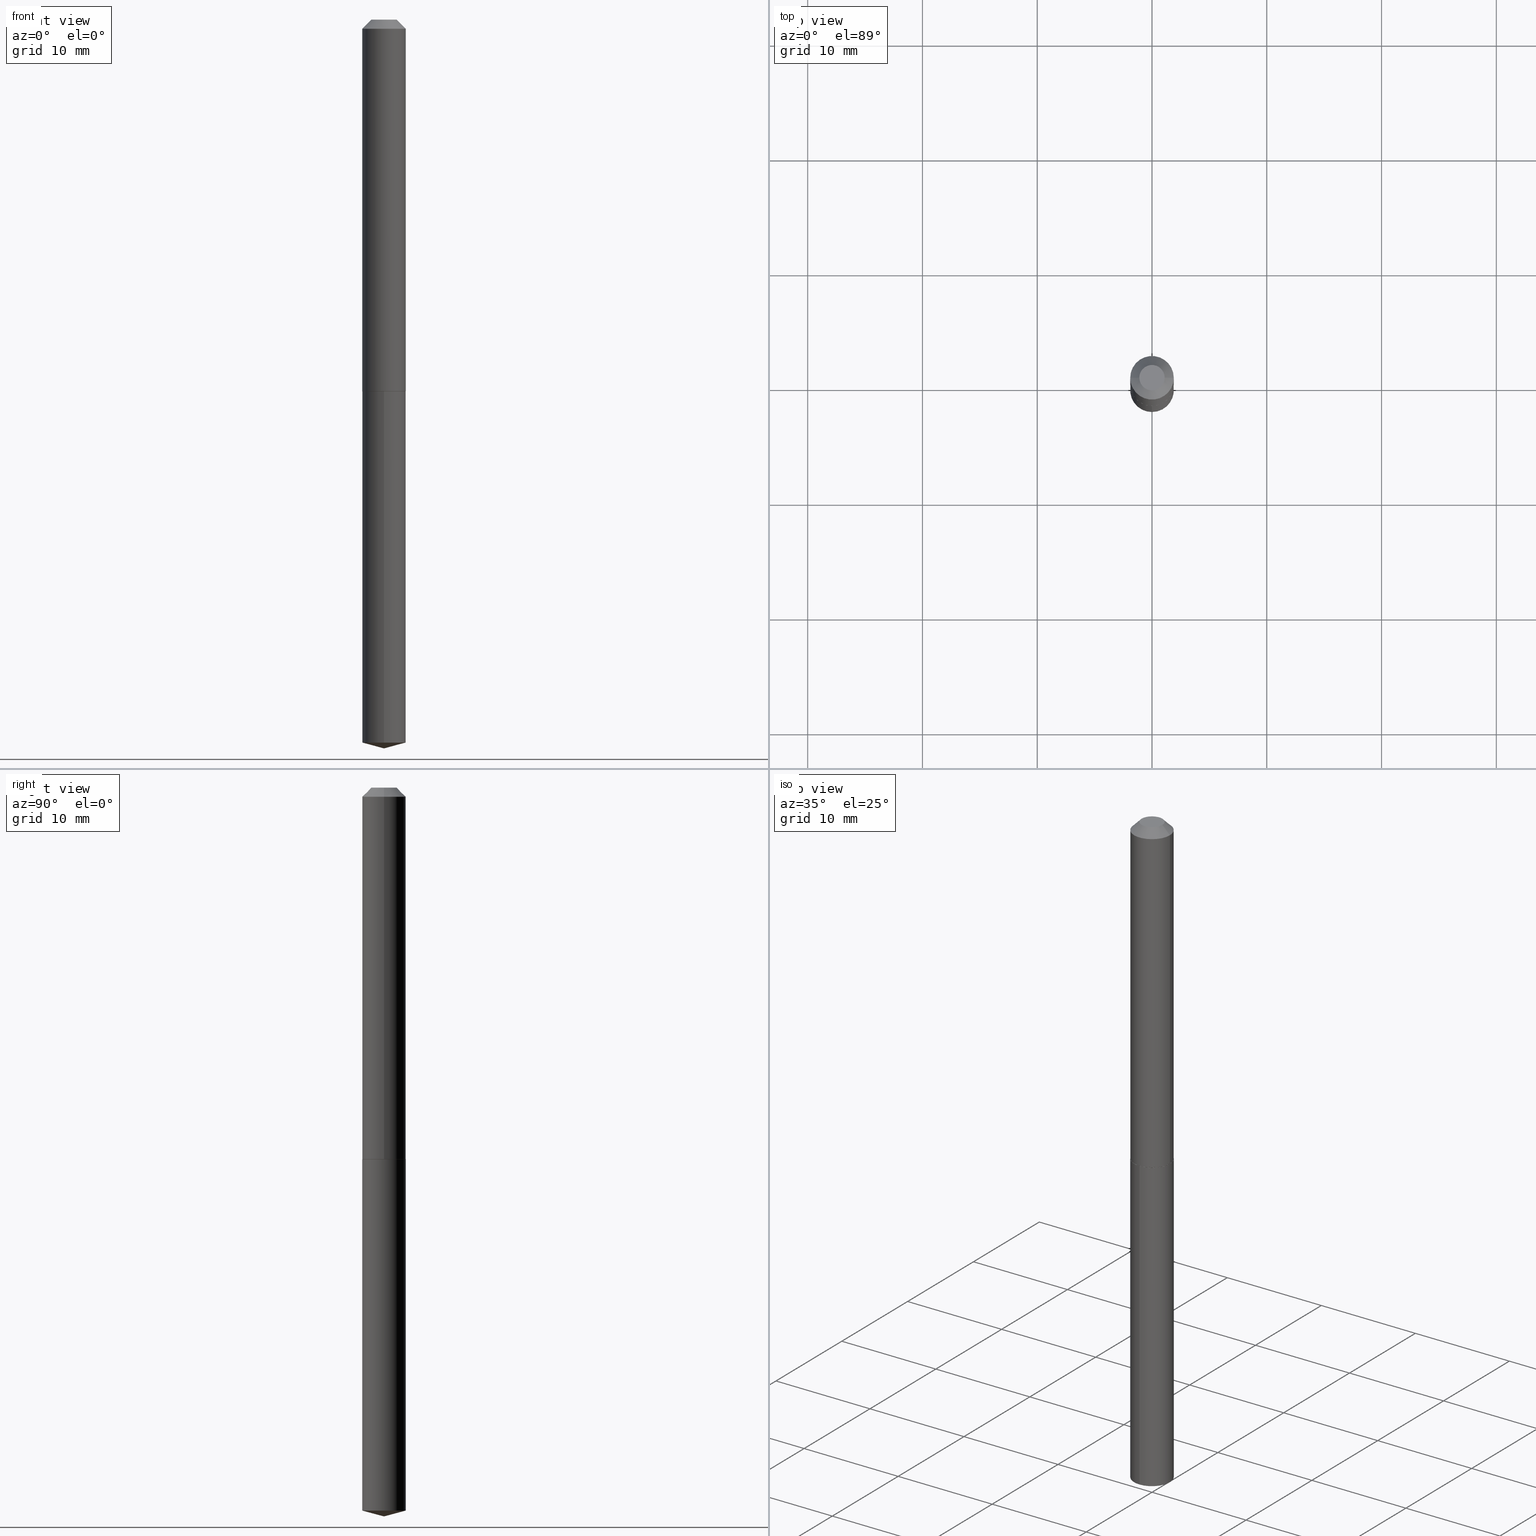
[diagram: canonical four-view strip — front | top / right | iso, engineering-drawing reading convention]
A machine part, canonical four-view strip (front | top / right | iso — engineering-drawing reading convention). The complete STEP part file that produces these views, byte-faithful:
ISO-10303-21;
HEADER;
FILE_DESCRIPTION (( 'STEP AP203' ),
    '1' );
FILE_NAME ('53025.STEP',
    '2024-04-22T18:58:59',
    ( '' ),
    ( '' ),
    'SwSTEP 2.0',
    'SolidWorks 2023',
    '' );
FILE_SCHEMA (( 'CONFIG_CONTROL_DESIGN' ));
ENDSEC;

DATA;
#1 = ORIENTED_EDGE ( 'NONE', *, *, #164, .F. ) ;
#2 = PERSON_AND_ORGANIZATION_ROLE ( 'classification_officer' ) ;
#3 = ADVANCED_FACE ( 'NONE', ( #273 ), #123, .T. ) ;
#4 = DATE_TIME_ROLE ( 'classification_date' ) ;
#5 = VECTOR ( 'NONE', #309, 39.37007874015748143 ) ;
#6 = EDGE_LOOP ( 'NONE', ( #170, #353 ) ) ;
#7 = EDGE_CURVE ( 'NONE', #263, #317, #338, .T. ) ;
#8 = AXIS2_PLACEMENT_3D ( 'NONE', #303, #156, #301 ) ;
#9 = CC_DESIGN_APPROVAL ( #206, ( #157 ) ) ;
#10 = CC_DESIGN_PERSON_AND_ORGANIZATION_ASSIGNMENT ( #274, #2, ( #46 ) ) ;
#11 = DIRECTION ( 'NONE',  ( 1.000000000000000000, -6.982962677686272233E-15, 0.000000000000000000 ) ) ;
#12 = EDGE_CURVE ( 'NONE', #117, #235, #221, .T. ) ;
#13 = DIRECTION ( 'NONE',  ( -2.445537241737406586E-29, 3.491383335237185366E-15, 1.000000000000000000 ) ) ;
#14 = CARTESIAN_POINT ( 'NONE',  ( 3.116749993482955687E-29, -4.449892966355588513E-15, -1.274499999999999744 ) ) ;
#15 = PERSON ( 'UNSPECIFIED', 'UNSPECIFIED', 'UNSPECIFIED', ('UNSPECIFIED'), ('UNSPECIFIED'), ('UNSPECIFIED') ) ;
#16 = FACE_OUTER_BOUND ( 'NONE', #306, .T. ) ;
#17 = CARTESIAN_POINT ( 'NONE',  ( -0.07425000000000044065, -3.919665757879601863E-15, -1.274499999999999744 ) ) ;
#18 = EDGE_CURVE ( 'NONE', #263, #224, #381, .T. ) ;
#19 = CARTESIAN_POINT ( 'NONE',  ( 3.115527259079864567E-29, -4.448147225686167798E-15, -1.274000000000000021 ) ) ;
#20 = CARTESIAN_POINT ( 'NONE',  ( 3.115527259079864567E-29, -4.448147225686167798E-15, -1.274000000000000021 ) ) ;
#21 = CARTESIAN_POINT ( 'NONE',  ( 7.642090019328599159E-31, -1.091087918388489774E-16, -0.03125000000000019429 ) ) ;
#22 = DIRECTION ( 'NONE',  ( 1.000000000000000000, -6.982962677686268288E-15, 4.876176775795935793E-29 ) ) ;
#23 = CIRCLE ( 'NONE', #51, 0.07475000000000013578 ) ;
#24 = LOCAL_TIME ( 14, 58, 59.00000000000000000, #387 ) ;
#25 = AXIS2_PLACEMENT_3D ( 'NONE', #371, #312, #44 ) ;
#26 = LINE ( 'NONE', #354, #140 ) ;
#27 = ORIENTED_EDGE ( 'NONE', *, *, #99, .T. ) ;
#28 = CALENDAR_DATE ( 2024, 22, 4 ) ;
#29 = DIRECTION ( 'NONE',  ( -2.445537241737406586E-29, 3.491383335237185366E-15, 1.000000000000000000 ) ) ;
#30 = ORIENTED_EDGE ( 'NONE', *, *, #155, .T. ) ;
#31 =( LENGTH_UNIT ( ) NAMED_UNIT ( * ) SI_UNIT ( $, .METRE. ) );
#32 = AXIS2_PLACEMENT_3D ( 'NONE', #193, #378, #79 ) ;
#33 = ORIENTED_EDGE ( 'NONE', *, *, #372, .F. ) ;
#34 = DATE_TIME_ROLE ( 'creation_date' ) ;
#35 = APPROVAL_PERSON_ORGANIZATION ( #180, #65, #214 ) ;
#36 = DATE_AND_TIME ( #28, #325 ) ;
#37 = VECTOR ( 'NONE', #144, 39.37007874015748143 ) ;
#38 = ORIENTED_EDGE ( 'NONE', *, *, #183, .T. ) ;
#39 = EDGE_LOOP ( 'NONE', ( #61, #27, #331 ) ) ;
#40 = CALENDAR_DATE ( 2024, 22, 4 ) ;
#41 = AXIS2_PLACEMENT_3D ( 'NONE', #367, #148, #364 ) ;
#42 = CARTESIAN_POINT ( 'NONE',  ( -0.07474999999999999700, -1.747497313781831905E-15, -0.03125000000000019429 ) ) ;
#43 = EDGE_CURVE ( 'NONE', #323, #56, #251, .T. ) ;
#44 = DIRECTION ( 'NONE',  ( -6.982962677686267499E-15, -1.000000000000000000, 3.510303681827559575E-15 ) ) ;
#45 = FACE_OUTER_BOUND ( 'NONE', #172, .T. ) ;
#46 = SECURITY_CLASSIFICATION ( '', '', #297 ) ;
#47 = DIRECTION ( 'NONE',  ( -2.445468806185136597E-29, 3.491481338843145583E-15, 1.000000000000000000 ) ) ;
#48 = CARTESIAN_POINT ( 'NONE',  ( 7.642090019328599159E-31, -1.091087918388489774E-16, -0.03125000000000019429 ) ) ;
#49 = FACE_OUTER_BOUND ( 'NONE', #176, .T. ) ;
#50 = DIRECTION ( 'NONE',  ( 1.000000000000000000, -6.982962677686268288E-15, 4.876176775795935793E-29 ) ) ;
#51 = AXIS2_PLACEMENT_3D ( 'NONE', #256, #54, #166 ) ;
#52 = CIRCLE ( 'NONE', #349, 0.07425000000000044065 ) ;
#53 = ORIENTED_EDGE ( 'NONE', *, *, #113, .T. ) ;
#54 = DIRECTION ( 'NONE',  ( -2.445468806185136597E-29, 3.491481338843145583E-15, 1.000000000000000000 ) ) ;
#55 = UNCERTAINTY_MEASURE_WITH_UNIT (LENGTH_MEASURE( 1.000000000000000082E-05 ), #153, 'distance_accuracy_value', 'NONE');
#56 = VERTEX_POINT ( 'NONE', #103 ) ;
#57 = PERSON_AND_ORGANIZATION_ROLE ( 'design_owner' ) ;
#58 = ORIENTED_EDGE ( 'NONE', *, *, #257, .F. ) ;
#59 = COORDINATED_UNIVERSAL_TIME_OFFSET ( 5, 0, .BEHIND. ) ;
#60 = FACE_OUTER_BOUND ( 'NONE', #6, .T. ) ;
#61 = ORIENTED_EDGE ( 'NONE', *, *, #344, .F. ) ;
#62 = PERSON_AND_ORGANIZATION ( #15, #106 ) ;
#63 = PERSON_AND_ORGANIZATION_ROLE ( 'creator' ) ;
#64 = DIRECTION ( 'NONE',  ( -2.445537241737406586E-29, 3.491383335237185366E-15, 1.000000000000000000 ) ) ;
#65 = APPROVAL ( #267, 'UNSPECIFIED' ) ;
#66 = AXIS2_PLACEMENT_3D ( 'NONE', #108, #314, #379 ) ;
#67 = CARTESIAN_POINT ( 'NONE',  ( 0.07474999999999999700, -6.219310171722709366E-16, -0.03125000000000019429 ) ) ;
#68 = DIRECTION ( 'NONE',  ( -2.445468806185136597E-29, 3.491481338843145583E-15, 1.000000000000000000 ) ) ;
#69 = APPROVAL_DATE_TIME ( #162, #383 ) ;
#70 = ADVANCED_FACE ( 'NONE', ( #281 ), #316, .T. ) ;
#71 = AXIS2_PLACEMENT_3D ( 'NONE', #81, #29, #178 ) ;
#72 = VECTOR ( 'NONE', #355, 39.37007874015748143 ) ;
#73 = CARTESIAN_POINT ( 'NONE',  ( 0.07475000000000013578, -4.970123685843217876E-15, -1.274000000000000021 ) ) ;
#74 = FACE_OUTER_BOUND ( 'NONE', #142, .T. ) ;
#75 = DIRECTION ( 'NONE',  ( -2.445468806185136597E-29, 3.491481338843145583E-15, 1.000000000000000000 ) ) ;
#76 = PLANE ( 'NONE',  #373 ) ;
#77 = DIRECTION ( 'NONE',  ( -2.445468806185136597E-29, 3.491481338843145583E-15, 1.000000000000000000 ) ) ;
#78 = DIRECTION ( 'NONE',  ( 1.000000000000000000, -6.982962677686265922E-15, 4.876176775795935793E-29 ) ) ;
#79 = DIRECTION ( 'NONE',  ( 1.000000000000000000, -6.982962677686266711E-15, 4.876200369069454952E-29 ) ) ;
#80 = DIRECTION ( 'NONE',  ( -1.000000000000000000, 6.982962677686266711E-15, 0.000000000000000000 ) ) ;
#81 = CARTESIAN_POINT ( 'NONE',  ( 6.064773723490612913E-29, -8.658653621139226113E-15, -2.479970797865774124 ) ) ;
#82 = EDGE_CURVE ( 'NONE', #235, #294, #285, .T. ) ;
#83 = VERTEX_POINT ( 'NONE', #42 ) ;
#84 = CARTESIAN_POINT ( 'NONE',  ( -0.07475000000000013578, -3.917016530705492240E-15, -1.274000000000000021 ) ) ;
#85 = APPLICATION_CONTEXT ( 'configuration controlled 3d designs of mechanical parts and assemblies' ) ;
#86 = AXIS2_PLACEMENT_3D ( 'NONE', #284, #13, #339 ) ;
#87 = ORIENTED_EDGE ( 'NONE', *, *, #127, .F. ) ;
#88 = PERSON_AND_ORGANIZATION ( #15, #106 ) ;
#89 = ADVANCED_FACE ( 'NONE', ( #130 ), #347, .T. ) ;
#90 = VERTEX_POINT ( 'NONE', #175 ) ;
#91 = COORDINATED_UNIVERSAL_TIME_OFFSET ( 5, 0, .BEHIND. ) ;
#92 = MANIFOLD_SOLID_BREP ( 'Body-Move/Copy2[1]', #244 ) ;
#93 = ORIENTED_EDGE ( 'NONE', *, *, #276, .T. ) ;
#94 = COORDINATED_UNIVERSAL_TIME_OFFSET ( 5, 0, .BEHIND. ) ;
#95 = CIRCLE ( 'NONE', #71, 0.07474999999999999700 ) ;
#96 = DIRECTION ( 'NONE',  ( 1.000000000000000000, 0.000000000000000000, 0.000000000000000000 ) ) ;
#97 = DIRECTION ( 'NONE',  ( -6.982962677686265133E-15, -1.000000000000000000, 3.654646145370252101E-15 ) ) ;
#98 = LENGTH_MEASURE_WITH_UNIT ( LENGTH_MEASURE( 0.02539999999999999897 ), #31 );
#99 = EDGE_CURVE ( 'NONE', #90, #231, #135, .T. ) ;
#100 = DIRECTION ( 'NONE',  ( -6.982962677686267499E-15, -1.000000000000000000, 3.510303681827559575E-15 ) ) ;
#101 = VECTOR ( 'NONE', #249, 39.37007874015748143 ) ;
#102 = AXIS2_PLACEMENT_3D ( 'NONE', #335, #241, #96 ) ;
#103 = CARTESIAN_POINT ( 'NONE',  ( 0.07475000000000013578, -4.970123685843217876E-15, -1.274000000000000021 ) ) ;
#104 = PERSON_AND_ORGANIZATION ( #15, #106 ) ;
#105 = CIRCLE ( 'NONE', #237, 0.07474999999999999700 ) ;
#106 = ORGANIZATION ( 'UNSPECIFIED', 'UNSPECIFIED', '' ) ;
#107 = CYLINDRICAL_SURFACE ( 'NONE', #41, 0.07474999999999999700 ) ;
#108 = CARTESIAN_POINT ( 'NONE',  ( 7.642090019328599159E-31, -1.091087918388489774E-16, -0.03125000000000019429 ) ) ;
#109 = CARTESIAN_POINT ( 'NONE',  ( 5.311306949807357085E-16, 0.07474999999999555611, -1.274500000000000188 ) ) ;
#110 = AXIS2_PLACEMENT_3D ( 'NONE', #242, #205, #97 ) ;
#111 = LINE ( 'NONE', #352, #72 ) ;
#112 = LOCAL_TIME ( 14, 58, 59.00000000000000000, #91 ) ;
#113 = EDGE_CURVE ( 'NONE', #117, #231, #95, .T. ) ;
#114 = CYLINDRICAL_SURFACE ( 'NONE', #248, 0.07475000000000006639 ) ;
#115 = ORIENTED_EDGE ( 'NONE', *, *, #372, .T. ) ;
#116 = CARTESIAN_POINT ( 'NONE',  ( 3.116749993482956808E-29, -4.449892966355589302E-15, -1.274499999999999966 ) ) ;
#117 = VERTEX_POINT ( 'NONE', #119 ) ;
#118 = CALENDAR_DATE ( 2024, 22, 4 ) ;
#119 = CARTESIAN_POINT ( 'NONE',  ( 5.311306949807354127E-16, 0.07474999999999132339, -2.479970797865774124 ) ) ;
#120 = VECTOR ( 'NONE', #345, 39.37007874015748143 ) ;
#121 = EDGE_LOOP ( 'NONE', ( #277, #53, #145, #266 ) ) ;
#122 = ORIENTED_EDGE ( 'NONE', *, *, #272, .T. ) ;
#123 = CONICAL_SURFACE ( 'NONE', #185, 146.9311341562583948, 1.308996938995752979 ) ;
#124 = AXIS2_PLACEMENT_3D ( 'NONE', #199, #262, #141 ) ;
#125 = APPLICATION_CONTEXT ( 'configuration controlled 3d designs of mechanical parts and assemblies' ) ;
#126 = VERTEX_POINT ( 'NONE', #17 ) ;
#127 = EDGE_CURVE ( 'NONE', #363, #56, #370, .T. ) ;
#128 = APPROVAL_PERSON_ORGANIZATION ( #62, #206, #300 ) ;
#129 = CC_DESIGN_PERSON_AND_ORGANIZATION_ASSIGNMENT ( #88, #204, ( #157 ) ) ;
#130 = FACE_OUTER_BOUND ( 'NONE', #121, .T. ) ;
#131 = CARTESIAN_POINT ( 'NONE',  ( 0.07475000000000006639, -5.219764601570489928E-16, 3.644942139907465396E-30 ) ) ;
#132 = CIRCLE ( 'NONE', #366, 0.07474999999999999700 ) ;
#133 = PRODUCT_DEFINITION ( 'UNKNOWN', '', #157, #336 ) ;
#134 = DIRECTION ( 'NONE',  ( -2.445468806185136877E-29, 3.491481338843145188E-15, 1.000000000000000000 ) ) ;
#135 = LINE ( 'NONE', #265, #37 ) ;
#136 = DIRECTION ( 'NONE',  ( -0.7071067811865957564, 7.493145998870527710E-15, 0.7071067811864992780 ) ) ;
#137 = DIRECTION ( 'NONE',  ( 1.000000000000000000, -6.982962677686266711E-15, 0.000000000000000000 ) ) ;
#138 = ADVANCED_FACE ( 'NONE', ( #45 ), #233, .T. ) ;
#139 = DIRECTION ( 'NONE',  ( 6.982962677686265922E-15, 1.000000000000000000, -3.491383335237185366E-15 ) ) ;
#140 = VECTOR ( 'NONE', #134, 39.37007874015748143 ) ;
#141 = DIRECTION ( 'NONE',  ( -6.982962677686266711E-15, -1.000000000000000000, 0.000000000000000000 ) ) ;
#142 = EDGE_LOOP ( 'NONE', ( #258, #255, #296, #93 ) ) ;
#143 = CARTESIAN_POINT ( 'NONE',  ( -5.219764601570171425E-16, -0.07475000000000443789, -1.274499999999999744 ) ) ;
#144 = DIRECTION ( 'NONE',  ( -6.745023994389847810E-15, -0.9659258262890689783, 0.2588190451025185745 ) ) ;
#145 = ORIENTED_EDGE ( 'NONE', *, *, #159, .T. ) ;
#146 = APPROVAL_STATUS ( 'not_yet_approved' ) ;
#147 = ORIENTED_EDGE ( 'NONE', *, *, #334, .T. ) ;
#148 = DIRECTION ( 'NONE',  ( -2.445537241737406586E-29, 3.491383335237185366E-15, 1.000000000000000000 ) ) ;
#149 = EDGE_CURVE ( 'NONE', #224, #263, #195, .T. ) ;
#150 = AXIS2_PLACEMENT_3D ( 'NONE', #341, #68, #163 ) ;
#151 = ORIENTED_EDGE ( 'NONE', *, *, #43, .F. ) ;
#152 = DATE_AND_TIME ( #118, #24 ) ;
#153 =( CONVERSION_BASED_UNIT ( 'INCH', #98 ) LENGTH_UNIT ( ) NAMED_UNIT ( #374 ) );
#154 = PRODUCT ( '53025', '53025', '', ( #184 ) ) ;
#155 = EDGE_CURVE ( 'NONE', #317, #83, #105, .T. ) ;
#156 = DIRECTION ( 'NONE',  ( 2.438088387897960049E-29, -3.491481338843145188E-15, -1.000000000000000000 ) ) ;
#157 = PRODUCT_DEFINITION_FORMATION_WITH_SPECIFIED_SOURCE ( 'ANY', '', #154, .NOT_KNOWN. ) ;
#158 = EDGE_LOOP ( 'NONE', ( #329, #238, #279, #299 ) ) ;
#159 = EDGE_CURVE ( 'NONE', #231, #294, #197, .T. ) ;
#160 = ORIENTED_EDGE ( 'NONE', *, *, #287, .T. ) ;
#161 = AXIS2_PLACEMENT_3D ( 'NONE', #116, #227, #139 ) ;
#162 = DATE_AND_TIME ( #40, #202 ) ;
#163 = DIRECTION ( 'NONE',  ( 1.000000000000000000, -6.982962677686266711E-15, 4.876200369069454952E-29 ) ) ;
#164 = EDGE_CURVE ( 'NONE', #224, #83, #111, .T. ) ;
#165 = CARTESIAN_POINT ( 'NONE',  ( -5.219764601569876588E-16, -0.07475000000000864286, -2.479970797865774124 ) ) ;
#166 = DIRECTION ( 'NONE',  ( 1.000000000000000000, -6.982962677686272233E-15, 0.000000000000000000 ) ) ;
#167 = CLOSED_SHELL ( 'NONE', ( #282, #138, #361, #298, #234, #218, #290, #219 ) ) ;
#168 = CC_DESIGN_DATE_AND_TIME_ASSIGNMENT ( #36, #34, ( #133 ) ) ;
#169 = DIRECTION ( 'NONE',  ( -2.445468806185136597E-29, 3.491481338843145583E-15, 1.000000000000000000 ) ) ;
#170 = ORIENTED_EDGE ( 'NONE', *, *, #149, .T. ) ;
#171 = DIRECTION ( 'NONE',  ( -2.445468806185136597E-29, 3.491481338843145583E-15, 1.000000000000000000 ) ) ;
#172 = EDGE_LOOP ( 'NONE', ( #160, #122, #181, #369 ) ) ;
#173 = CARTESIAN_POINT ( 'NONE',  ( 6.391209568475323660E-29, 2.393195156984147979E-16, -1.274499999999999744 ) ) ;
#174 = AXIS2_PLACEMENT_3D ( 'NONE', #229, #324, #80 ) ;
#175 = CARTESIAN_POINT ( 'NONE',  ( 6.113843104343517165E-29, -8.728458338092962822E-15, -2.500000000000000000 ) ) ;
#176 = EDGE_LOOP ( 'NONE', ( #386, #376, #30, #1 ) ) ;
#177 = DIRECTION ( 'NONE',  ( -2.438088387897960049E-29, 3.491481338843145188E-15, 1.000000000000000000 ) ) ;
#178 = DIRECTION ( 'NONE',  ( -6.982962677686266711E-15, -1.000000000000000000, 0.000000000000000000 ) ) ;
#179 = ORIENTED_EDGE ( 'NONE', *, *, #334, .F. ) ;
#180 = PERSON_AND_ORGANIZATION ( #15, #106 ) ;
#181 = ORIENTED_EDGE ( 'NONE', *, *, #155, .F. ) ;
#182 = DATE_AND_TIME ( #332, #375 ) ;
#183 = EDGE_CURVE ( 'NONE', #231, #117, #220, .T. ) ;
#184 = MECHANICAL_CONTEXT ( 'NONE', #85, 'mechanical' ) ;
#185 = AXIS2_PLACEMENT_3D ( 'NONE', #210, #246, #100 ) ;
#186 = EDGE_LOOP ( 'NONE', ( #38, #192, #362, #217 ) ) ;
#187 = APPROVAL_PERSON_ORGANIZATION ( #104, #383, #245 ) ;
#188 = SHAPE_DEFINITION_REPRESENTATION ( #351, #190 ) ;
#189 = ORIENTED_EDGE ( 'NONE', *, *, #287, .F. ) ;
#190 = ADVANCED_BREP_SHAPE_REPRESENTATION ( '53025', ( #92, #209, #102 ), #305 ) ;
#191 = CC_DESIGN_PERSON_AND_ORGANIZATION_ASSIGNMENT ( #275, #57, ( #154 ) ) ;
#192 = ORIENTED_EDGE ( 'NONE', *, *, #12, .T. ) ;
#193 = CARTESIAN_POINT ( 'NONE',  ( 3.743544432386673062E-48, -5.344789307371237567E-34, -1.530808498934197508E-19 ) ) ;
#194 = PLANE ( 'NONE',  #161 ) ;
#195 = CIRCLE ( 'NONE', #32, 0.04349999999999999700 ) ;
#196 = VECTOR ( 'NONE', #348, 39.37007874015748854 ) ;
#197 = LINE ( 'NONE', #260, #322 ) ;
#198 = FACE_OUTER_BOUND ( 'NONE', #327, .T. ) ;
#199 = CARTESIAN_POINT ( 'NONE',  ( 6.064773723490612913E-29, -8.658653621139226113E-15, -2.479970797865774124 ) ) ;
#200 = FACE_OUTER_BOUND ( 'NONE', #356, .T. ) ;
#201 = ORIENTED_EDGE ( 'NONE', *, *, #43, .T. ) ;
#202 = LOCAL_TIME ( 14, 58, 59.00000000000000000, #250 ) ;
#203 = ORIENTED_EDGE ( 'NONE', *, *, #99, .F. ) ;
#204 = PERSON_AND_ORGANIZATION_ROLE ( 'design_supplier' ) ;
#205 = DIRECTION ( 'NONE',  ( -2.445537241737406586E-29, 3.491383335237185366E-15, 1.000000000000000000 ) ) ;
#206 = APPROVAL ( #146, 'UNSPECIFIED' ) ;
#207 = EDGE_LOOP ( 'NONE', ( #58, #147, #201, #87 ) ) ;
#208 = CALENDAR_DATE ( 2024, 22, 4 ) ;
#209 = MANIFOLD_SOLID_BREP ( 'Body-Move/Copy2[2]', #167 ) ;
#210 = CARTESIAN_POINT ( 'NONE',  ( -9.016723788595708688E-28, 1.287274535766728674E-13, 36.87007874015748143 ) ) ;
#211 = PERSON_AND_ORGANIZATION_ROLE ( 'creator' ) ;
#212 = CONICAL_SURFACE ( 'NONE', #310, 0.07475000000000013578, 0.7853981633975165577 ) ;
#213 = AXIS2_PLACEMENT_3D ( 'NONE', #232, #169, #261 ) ;
#214 = APPROVAL_ROLE ( '' ) ;
#215 = CC_DESIGN_DATE_AND_TIME_ASSIGNMENT ( #182, #4, ( #46 ) ) ;
#216 = VECTOR ( 'NONE', #343, 39.37007874015748143 ) ;
#217 = ORIENTED_EDGE ( 'NONE', *, *, #159, .F. ) ;
#218 = ADVANCED_FACE ( 'NONE', ( #384 ), #114, .T. ) ;
#219 = ADVANCED_FACE ( 'NONE', ( #60 ), #240, .F. ) ;
#220 = CIRCLE ( 'NONE', #124, 0.07474999999999999700 ) ;
#221 = LINE ( 'NONE', #311, #101 ) ;
#222 = LINE ( 'NONE', #84, #243 ) ;
#223 = EDGE_CURVE ( 'NONE', #294, #235, #226, .T. ) ;
#224 = VERTEX_POINT ( 'NONE', #247 ) ;
#225 = CARTESIAN_POINT ( 'NONE',  ( 0.07425000000000044065, -4.968377945173796372E-15, -1.274499999999999744 ) ) ;
#226 = CIRCLE ( 'NONE', #110, 0.07474999999999999700 ) ;
#227 = DIRECTION ( 'NONE',  ( 2.445537241737406025E-29, -3.491383335237185366E-15, -1.000000000000000000 ) ) ;
#228 = CC_DESIGN_APPROVAL ( #383, ( #46 ) ) ;
#229 = CARTESIAN_POINT ( 'NONE',  ( 7.642090019328599159E-31, -1.091087918388489774E-16, -0.03125000000000019429 ) ) ;
#230 = CARTESIAN_POINT ( 'NONE',  ( 0.000000000000000000, 0.000000000000000000, 0.000000000000000000 ) ) ;
#231 = VERTEX_POINT ( 'NONE', #165 ) ;
#232 = CARTESIAN_POINT ( 'NONE',  ( 3.116749993482955687E-29, -4.449892966355588513E-15, -1.274499999999999744 ) ) ;
#233 = CYLINDRICAL_SURFACE ( 'NONE', #252, 0.07475000000000006639 ) ;
#234 = ADVANCED_FACE ( 'NONE', ( #368 ), #212, .T. ) ;
#235 = VERTEX_POINT ( 'NONE', #109 ) ;
#236 = APPROVAL_DATE_TIME ( #152, #206 ) ;
#237 = AXIS2_PLACEMENT_3D ( 'NONE', #48, #77, #137 ) ;
#238 = ORIENTED_EDGE ( 'NONE', *, *, #127, .T. ) ;
#239 = ORIENTED_EDGE ( 'NONE', *, *, #82, .T. ) ;
#240 = PLANE ( 'NONE',  #8 ) ;
#241 = DIRECTION ( 'NONE',  ( 0.000000000000000000, 0.000000000000000000, 1.000000000000000000 ) ) ;
#242 = CARTESIAN_POINT ( 'NONE',  ( 3.116749993482956808E-29, -4.449892966355589302E-15, -1.274499999999999966 ) ) ;
#243 = VECTOR ( 'NONE', #136, 39.37007874015748143 ) ;
#244 = CLOSED_SHELL ( 'NONE', ( #388, #70, #3, #89, #264 ) ) ;
#245 = APPROVAL_ROLE ( '' ) ;
#246 = DIRECTION ( 'NONE',  ( -2.445537241737406586E-29, 3.491383335237185366E-15, 1.000000000000000000 ) ) ;
#247 = CARTESIAN_POINT ( 'NONE',  ( -0.04349999999999999700, 3.583132723987760320E-16, -1.530808498957345742E-19 ) ) ;
#248 = AXIS2_PLACEMENT_3D ( 'NONE', #230, #321, #50 ) ;
#249 = DIRECTION ( 'NONE',  ( -2.445537241737406306E-29, 3.491383335237185366E-15, 1.000000000000000000 ) ) ;
#250 = COORDINATED_UNIVERSAL_TIME_OFFSET ( 5, 0, .BEHIND. ) ;
#251 = LINE ( 'NONE', #73, #5 ) ;
#252 = AXIS2_PLACEMENT_3D ( 'NONE', #293, #75, #22 ) ;
#253 = CONICAL_SURFACE ( 'NONE', #360, 0.07475000000000013578, 0.7853981633975165577 ) ;
#254 = DIRECTION ( 'NONE',  ( 1.000000000000000000, -6.982962677686261977E-15, 0.000000000000000000 ) ) ;
#255 = ORIENTED_EDGE ( 'NONE', *, *, #149, .F. ) ;
#256 = CARTESIAN_POINT ( 'NONE',  ( 3.115527259079864567E-29, -4.448147225686167798E-15, -1.274000000000000021 ) ) ;
#257 = EDGE_CURVE ( 'NONE', #126, #363, #222, .T. ) ;
#258 = ORIENTED_EDGE ( 'NONE', *, *, #7, .F. ) ;
#259 = LINE ( 'NONE', #131, #120 ) ;
#260 = CARTESIAN_POINT ( 'NONE',  ( -5.219764601570172411E-16, -0.07475000000000445177, -1.274499999999999744 ) ) ;
#261 = DIRECTION ( 'NONE',  ( 1.000000000000000000, -6.982962677686261977E-15, 0.000000000000000000 ) ) ;
#262 = DIRECTION ( 'NONE',  ( -2.445537241737406586E-29, 3.491383335237185366E-15, 1.000000000000000000 ) ) ;
#263 = VERTEX_POINT ( 'NONE', #377 ) ;
#264 = ADVANCED_FACE ( 'NONE', ( #16 ), #194, .F. ) ;
#265 = CARTESIAN_POINT ( 'NONE',  ( 6.113668662120780083E-29, -8.728708149284555352E-15, -2.500000000000000000 ) ) ;
#266 = ORIENTED_EDGE ( 'NONE', *, *, #82, .F. ) ;
#267 = APPROVAL_STATUS ( 'not_yet_approved' ) ;
#268 = PRODUCT_RELATED_PRODUCT_CATEGORY ( 'detail', '', ( #154 ) ) ;
#269 = ORIENTED_EDGE ( 'NONE', *, *, #223, .T. ) ;
#270 =( NAMED_UNIT ( * ) PLANE_ANGLE_UNIT ( ) SI_UNIT ( $, .RADIAN. ) );
#271 = AXIS2_PLACEMENT_3D ( 'NONE', #315, #64, #326 ) ;
#272 = EDGE_CURVE ( 'NONE', #363, #83, #26, .T. ) ;
#273 = FACE_OUTER_BOUND ( 'NONE', #39, .T. ) ;
#274 = PERSON_AND_ORGANIZATION ( #15, #106 ) ;
#275 = PERSON_AND_ORGANIZATION ( #15, #106 ) ;
#276 = EDGE_CURVE ( 'NONE', #83, #317, #132, .T. ) ;
#277 = ORIENTED_EDGE ( 'NONE', *, *, #12, .F. ) ;
#278 = APPROVAL_STATUS ( 'not_yet_approved' ) ;
#279 = ORIENTED_EDGE ( 'NONE', *, *, #302, .T. ) ;
#280 = CC_DESIGN_SECURITY_CLASSIFICATION ( #46, ( #157 ) ) ;
#281 = FACE_OUTER_BOUND ( 'NONE', #307, .T. ) ;
#282 = ADVANCED_FACE ( 'NONE', ( #49 ), #291, .T. ) ;
#283 = DIRECTION ( 'NONE',  ( -2.445468806185136597E-29, 3.491481338843145583E-15, 1.000000000000000000 ) ) ;
#284 = CARTESIAN_POINT ( 'NONE',  ( 3.116749993482956808E-29, -4.449892966355589302E-15, -1.274499999999999966 ) ) ;
#285 = CIRCLE ( 'NONE', #86, 0.07474999999999999700 ) ;
#286 = CARTESIAN_POINT ( 'NONE',  ( 0.07474999999999999700, -6.310852519958974032E-16, -0.03125000000000019429 ) ) ;
#287 = EDGE_CURVE ( 'NONE', #56, #363, #23, .T. ) ;
#288 = CARTESIAN_POINT ( 'NONE',  ( 6.113844633995897447E-29, -8.728458338092962822E-15, -2.500000000000000000 ) ) ;
#289 = FACE_OUTER_BOUND ( 'NONE', #186, .T. ) ;
#290 = ADVANCED_FACE ( 'NONE', ( #74 ), #304, .T. ) ;
#291 = CONICAL_SURFACE ( 'NONE', #174, 0.07474999999999999700, 0.7853981633974452814 ) ;
#292 = CARTESIAN_POINT ( 'NONE',  ( -0.07475000000000013578, -3.917016530705492240E-15, -1.274000000000000021 ) ) ;
#293 = CARTESIAN_POINT ( 'NONE',  ( 0.000000000000000000, 0.000000000000000000, 0.000000000000000000 ) ) ;
#294 = VERTEX_POINT ( 'NONE', #143 ) ;
#295 = PERSON_AND_ORGANIZATION ( #15, #106 ) ;
#296 = ORIENTED_EDGE ( 'NONE', *, *, #164, .T. ) ;
#297 = SECURITY_CLASSIFICATION_LEVEL ( 'unclassified' ) ;
#298 = ADVANCED_FACE ( 'NONE', ( #200 ), #76, .F. ) ;
#299 = ORIENTED_EDGE ( 'NONE', *, *, #276, .F. ) ;
#300 = APPROVAL_ROLE ( '' ) ;
#301 = DIRECTION ( 'NONE',  ( -1.000000000000000000, 6.982962677686265922E-15, -4.876176775795935793E-29 ) ) ;
#302 = EDGE_CURVE ( 'NONE', #56, #317, #259, .T. ) ;
#303 = CARTESIAN_POINT ( 'NONE',  ( 1.871772216193336531E-48, -2.672394653685618784E-34, -7.654042494670987541E-20 ) ) ;
#304 = CONICAL_SURFACE ( 'NONE', #66, 0.07474999999999999700, 0.7853981633974452814 ) ;
#305 =( GEOMETRIC_REPRESENTATION_CONTEXT ( 3 ) GLOBAL_UNCERTAINTY_ASSIGNED_CONTEXT ( ( #55 ) ) GLOBAL_UNIT_ASSIGNED_CONTEXT ( ( #153, #270, #390 ) ) REPRESENTATION_CONTEXT ( 'NONE', 'WORKASPACE' ) );
#306 = EDGE_LOOP ( 'NONE', ( #269, #239 ) ) ;
#307 = EDGE_LOOP ( 'NONE', ( #203, #389, #358 ) ) ;
#308 = CARTESIAN_POINT ( 'NONE',  ( 3.115527259079864567E-29, -4.448147225686167798E-15, -1.274000000000000021 ) ) ;
#309 = DIRECTION ( 'NONE',  ( 0.7071067811865957564, -2.468850131082761932E-15, 0.7071067811864992780 ) ) ;
#310 = AXIS2_PLACEMENT_3D ( 'NONE', #308, #283, #11 ) ;
#311 = CARTESIAN_POINT ( 'NONE',  ( 5.311306949807060276E-16, 0.07474999999999555611, -1.274500000000000188 ) ) ;
#312 = DIRECTION ( 'NONE',  ( -2.445537241737406586E-29, 3.491383335237185366E-15, 1.000000000000000000 ) ) ;
#313 = CC_DESIGN_PERSON_AND_ORGANIZATION_ASSIGNMENT ( #295, #63, ( #133 ) ) ;
#314 = DIRECTION ( 'NONE',  ( 2.445468806185136597E-29, -3.491481338843145583E-15, -1.000000000000000000 ) ) ;
#315 = CARTESIAN_POINT ( 'NONE',  ( 3.116749993482956808E-29, -4.449892966355589302E-15, -1.274499999999999966 ) ) ;
#316 = CONICAL_SURFACE ( 'NONE', #25, 146.9311341562583948, 1.308996938995752979 ) ;
#317 = VERTEX_POINT ( 'NONE', #286 ) ;
#318 = LINE ( 'NONE', #288, #196 ) ;
#319 = DIRECTION ( 'NONE',  ( 1.000000000000000000, -6.982962677686272233E-15, 0.000000000000000000 ) ) ;
#320 = DIRECTION ( 'NONE',  ( 1.000000000000000000, -6.982962677686266711E-15, 0.000000000000000000 ) ) ;
#321 = DIRECTION ( 'NONE',  ( -2.445468806185136597E-29, 3.491481338843145583E-15, 1.000000000000000000 ) ) ;
#322 = VECTOR ( 'NONE', #380, 39.37007874015748143 ) ;
#323 = VERTEX_POINT ( 'NONE', #225 ) ;
#324 = DIRECTION ( 'NONE',  ( 2.445468806185136597E-29, -3.491481338843145583E-15, -1.000000000000000000 ) ) ;
#325 = LOCAL_TIME ( 14, 58, 59.00000000000000000, #59 ) ;
#326 = DIRECTION ( 'NONE',  ( -6.982962677686266711E-15, -1.000000000000000000, 3.654646145370252101E-15 ) ) ;
#327 = EDGE_LOOP ( 'NONE', ( #115, #350, #189, #151 ) ) ;
#328 = APPLICATION_PROTOCOL_DEFINITION ( 'international standard', 'config_control_design', 1994, #85 ) ;
#329 = ORIENTED_EDGE ( 'NONE', *, *, #272, .F. ) ;
#330 = DATE_AND_TIME ( #208, #112 ) ;
#331 = ORIENTED_EDGE ( 'NONE', *, *, #113, .F. ) ;
#332 = CALENDAR_DATE ( 2024, 22, 4 ) ;
#333 = APPROVAL_DATE_TIME ( #330, #65 ) ;
#334 = EDGE_CURVE ( 'NONE', #126, #323, #337, .T. ) ;
#335 = CARTESIAN_POINT ( 'NONE',  ( 0.000000000000000000, 0.000000000000000000, 0.000000000000000000 ) ) ;
#336 = DESIGN_CONTEXT ( 'detailed design', #125, 'design' ) ;
#337 = CIRCLE ( 'NONE', #213, 0.07425000000000044065 ) ;
#338 = LINE ( 'NONE', #67, #216 ) ;
#339 = DIRECTION ( 'NONE',  ( -6.982962677686265133E-15, -1.000000000000000000, 3.654646145370252101E-15 ) ) ;
#340 = CC_DESIGN_PERSON_AND_ORGANIZATION_ASSIGNMENT ( #359, #211, ( #157 ) ) ;
#341 = CARTESIAN_POINT ( 'NONE',  ( 3.743544432386673062E-48, -5.344789307371237567E-34, -1.530808498934197508E-19 ) ) ;
#342 = AXIS2_PLACEMENT_3D ( 'NONE', #20, #346, #385 ) ;
#343 = DIRECTION ( 'NONE',  ( 0.7071067811865453523, -7.319954787623248157E-15, -0.7071067811865496822 ) ) ;
#344 = EDGE_CURVE ( 'NONE', #90, #117, #318, .T. ) ;
#345 = DIRECTION ( 'NONE',  ( -2.445468806185136877E-29, 3.491481338843145188E-15, 1.000000000000000000 ) ) ;
#346 = DIRECTION ( 'NONE',  ( -2.445468806185136597E-29, 3.491481338843145583E-15, 1.000000000000000000 ) ) ;
#347 = CYLINDRICAL_SURFACE ( 'NONE', #271, 0.07474999999999999700 ) ;
#348 = DIRECTION ( 'NONE',  ( 6.863315791527702148E-15, 0.9659258262890707547, 0.2588190451025118022 ) ) ;
#349 = AXIS2_PLACEMENT_3D ( 'NONE', #14, #47, #254 ) ;
#350 = ORIENTED_EDGE ( 'NONE', *, *, #257, .T. ) ;
#351 = PRODUCT_DEFINITION_SHAPE ( 'NONE', 'NONE',  #133 ) ;
#352 = CARTESIAN_POINT ( 'NONE',  ( -0.07474999999999999700, 4.128676683181994484E-16, -0.03125000000000019429 ) ) ;
#353 = ORIENTED_EDGE ( 'NONE', *, *, #18, .T. ) ;
#354 = CARTESIAN_POINT ( 'NONE',  ( -0.07475000000000006639, 5.311306949806753607E-16, -3.676903979965545675E-30 ) ) ;
#355 = DIRECTION ( 'NONE',  ( -0.7071067811865453523, 2.468850131082234184E-15, -0.7071067811865496822 ) ) ;
#356 = EDGE_LOOP ( 'NONE', ( #33, #179 ) ) ;
#357 = DIRECTION ( 'NONE',  ( -2.445468806185136597E-29, 3.491481338843145583E-15, 1.000000000000000000 ) ) ;
#358 = ORIENTED_EDGE ( 'NONE', *, *, #183, .F. ) ;
#359 = PERSON_AND_ORGANIZATION ( #15, #106 ) ;
#360 = AXIS2_PLACEMENT_3D ( 'NONE', #19, #357, #319 ) ;
#361 = ADVANCED_FACE ( 'NONE', ( #198 ), #253, .T. ) ;
#362 = ORIENTED_EDGE ( 'NONE', *, *, #223, .F. ) ;
#363 = VERTEX_POINT ( 'NONE', #292 ) ;
#364 = DIRECTION ( 'NONE',  ( -6.982962677686266711E-15, -1.000000000000000000, 3.654646145370252101E-15 ) ) ;
#365 = APPLICATION_PROTOCOL_DEFINITION ( 'international standard', 'config_control_design', 1994, #125 ) ;
#366 = AXIS2_PLACEMENT_3D ( 'NONE', #21, #171, #320 ) ;
#367 = CARTESIAN_POINT ( 'NONE',  ( 3.116749993482956808E-29, -4.449892966355589302E-15, -1.274499999999999966 ) ) ;
#368 = FACE_OUTER_BOUND ( 'NONE', #207, .T. ) ;
#369 = ORIENTED_EDGE ( 'NONE', *, *, #302, .F. ) ;
#370 = CIRCLE ( 'NONE', #342, 0.07475000000000013578 ) ;
#371 = CARTESIAN_POINT ( 'NONE',  ( -9.016723788595708688E-28, 1.287274535766728674E-13, 36.87007874015748143 ) ) ;
#372 = EDGE_CURVE ( 'NONE', #323, #126, #52, .T. ) ;
#373 = AXIS2_PLACEMENT_3D ( 'NONE', #173, #177, #78 ) ;
#374 = DIMENSIONAL_EXPONENTS ( 1.000000000000000000, 0.000000000000000000, 0.000000000000000000, 0.000000000000000000, 0.000000000000000000, 0.000000000000000000, 0.000000000000000000 ) ;
#375 = LOCAL_TIME ( 14, 58, 59.00000000000000000, #94 ) ;
#376 = ORIENTED_EDGE ( 'NONE', *, *, #7, .T. ) ;
#377 = CARTESIAN_POINT ( 'NONE',  ( 0.04349999999999999700, -4.601813400376663043E-16, -1.530808498907492804E-19 ) ) ;
#378 = DIRECTION ( 'NONE',  ( -2.445468806185136597E-29, 3.491481338843145583E-15, 1.000000000000000000 ) ) ;
#379 = DIRECTION ( 'NONE',  ( -1.000000000000000000, 6.982962677686266711E-15, 0.000000000000000000 ) ) ;
#380 = DIRECTION ( 'NONE',  ( -2.445537241737406306E-29, 3.491383335237185366E-15, 1.000000000000000000 ) ) ;
#381 = CIRCLE ( 'NONE', #150, 0.04349999999999999700 ) ;
#382 = CC_DESIGN_APPROVAL ( #65, ( #133 ) ) ;
#383 = APPROVAL ( #278, 'UNSPECIFIED' ) ;
#384 = FACE_OUTER_BOUND ( 'NONE', #158, .T. ) ;
#385 = DIRECTION ( 'NONE',  ( 1.000000000000000000, -6.982962677686272233E-15, 0.000000000000000000 ) ) ;
#386 = ORIENTED_EDGE ( 'NONE', *, *, #18, .F. ) ;
#387 = COORDINATED_UNIVERSAL_TIME_OFFSET ( 5, 0, .BEHIND. ) ;
#388 = ADVANCED_FACE ( 'NONE', ( #289 ), #107, .T. ) ;
#389 = ORIENTED_EDGE ( 'NONE', *, *, #344, .T. ) ;
#390 =( NAMED_UNIT ( * ) SI_UNIT ( $, .STERADIAN. ) SOLID_ANGLE_UNIT ( ) );
ENDSEC;
END-ISO-10303-21;
